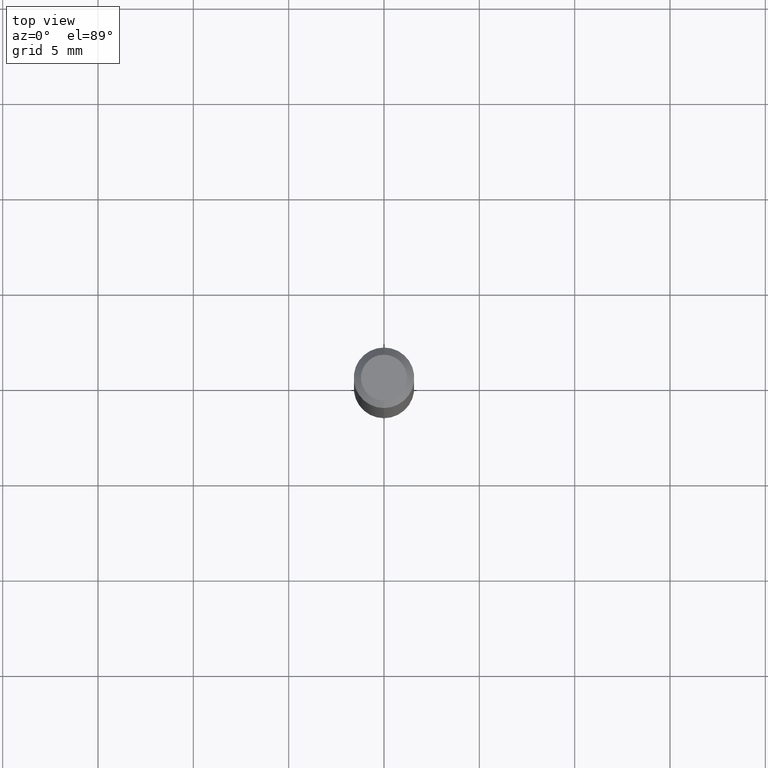
[diagram: clean part render]
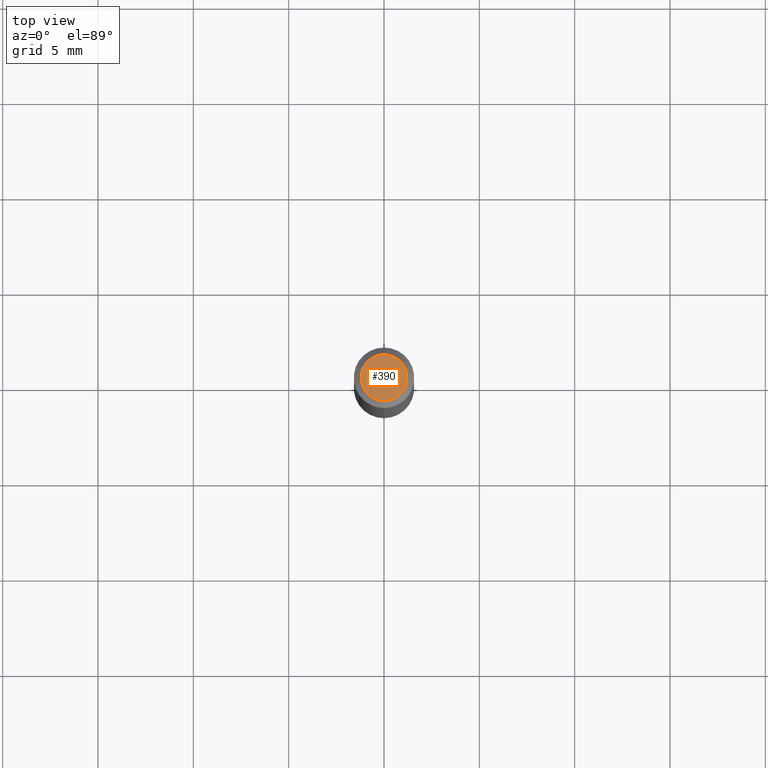
[diagram: same view with one face highlighted and labeled with its STEP entity id]
A machine part, top view. The second image highlights one B-rep face of the part: STEP entity #390.
In plain terms, the highlighted planar face has unit normal (0, -0, -1).
Its self-contained STEP definition (entity closure, byte-faithful):
#2 = DIRECTION ( 'NONE',  ( 2.445470767023834955E-29, -3.491478530810524954E-15, -1.000000000000000000 ) ) ;
#43 = DIRECTION ( 'NONE',  ( -2.445470767023835515E-29, 3.491478530810524954E-15, 1.000000000000000000 ) ) ;
#68 = EDGE_CURVE ( 'NONE', #296, #253, #426, .T. ) ;
#79 = CARTESIAN_POINT ( 'NONE',  ( -5.856621485467640088E-45, 8.361689886188936575E-31, 2.394885093063374429E-16 ) ) ;
#98 = DIRECTION ( 'NONE',  ( -2.445470767023835515E-29, 3.491478530810524954E-15, 1.000000000000000000 ) ) ;
#120 = DIRECTION ( 'NONE',  ( -6.982962677686266711E-15, -1.000000000000000000, 3.491478530810524560E-15 ) ) ;
#124 = AXIS2_PLACEMENT_3D ( 'NONE', #362, #2, #352 ) ;
#125 = ORIENTED_EDGE ( 'NONE', *, *, #466, .T. ) ;
#132 = EDGE_LOOP ( 'NONE', ( #451, #125 ) ) ;
#166 = CIRCLE ( 'NONE', #331, 0.04749999999999999362 ) ;
#253 = VERTEX_POINT ( 'NONE', #270 ) ;
#265 = DIRECTION ( 'NONE',  ( -6.982962677686266711E-15, -1.000000000000000000, 3.491478530810524560E-15 ) ) ;
#270 = CARTESIAN_POINT ( 'NONE',  ( -3.773273898774340269E-16, -0.04749999999999999362, 4.053337395198373655E-16 ) ) ;
#296 = VERTEX_POINT ( 'NONE', #310 ) ;
#301 = CARTESIAN_POINT ( 'NONE',  ( -5.856621485467640088E-45, 8.361689886188936575E-31, 2.394885093063374429E-16 ) ) ;
#310 = CARTESIAN_POINT ( 'NONE',  ( 3.840629472727447874E-16, 0.04749999999999999362, 7.364327909283752044E-17 ) ) ;
#331 = AXIS2_PLACEMENT_3D ( 'NONE', #79, #43, #120 ) ;
#352 = DIRECTION ( 'NONE',  ( 6.982962677686265922E-15, 1.000000000000000000, -3.491478530810524954E-15 ) ) ;
#356 = PLANE ( 'NONE',  #124 ) ;
#362 = CARTESIAN_POINT ( 'NONE',  ( 3.316907271900976096E-16, 0.04749999999999999362, -4.610097556033120720E-17 ) ) ;
#390 = ADVANCED_FACE ( 'NONE', ( #512 ), #356, .F. ) ;
#426 = CIRCLE ( 'NONE', #507, 0.04749999999999999362 ) ;
#451 = ORIENTED_EDGE ( 'NONE', *, *, #68, .T. ) ;
#466 = EDGE_CURVE ( 'NONE', #253, #296, #166, .T. ) ;
#507 = AXIS2_PLACEMENT_3D ( 'NONE', #301, #98, #265 ) ;
#512 = FACE_OUTER_BOUND ( 'NONE', #132, .T. ) ;